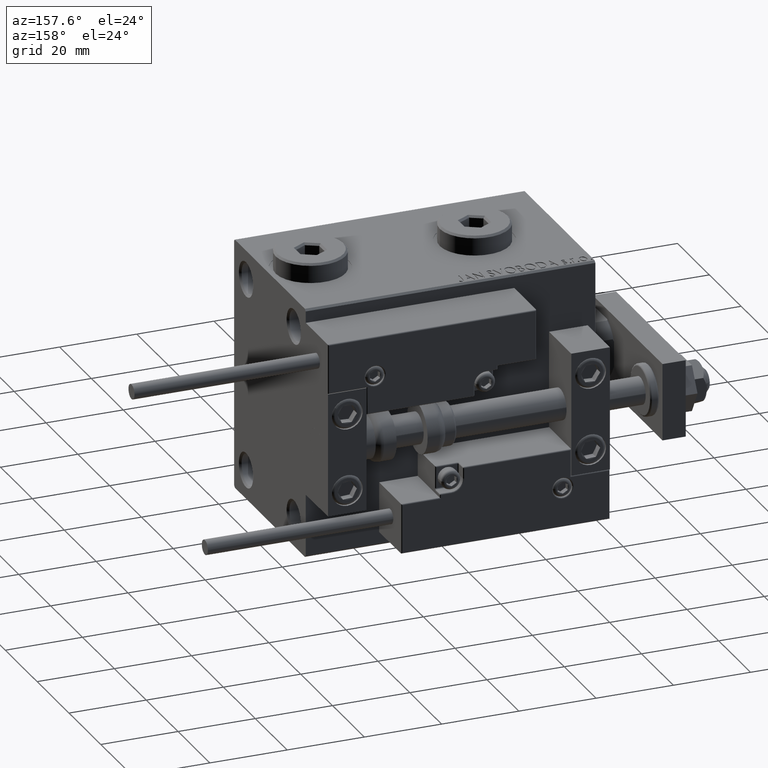
[diagram: clean part render]
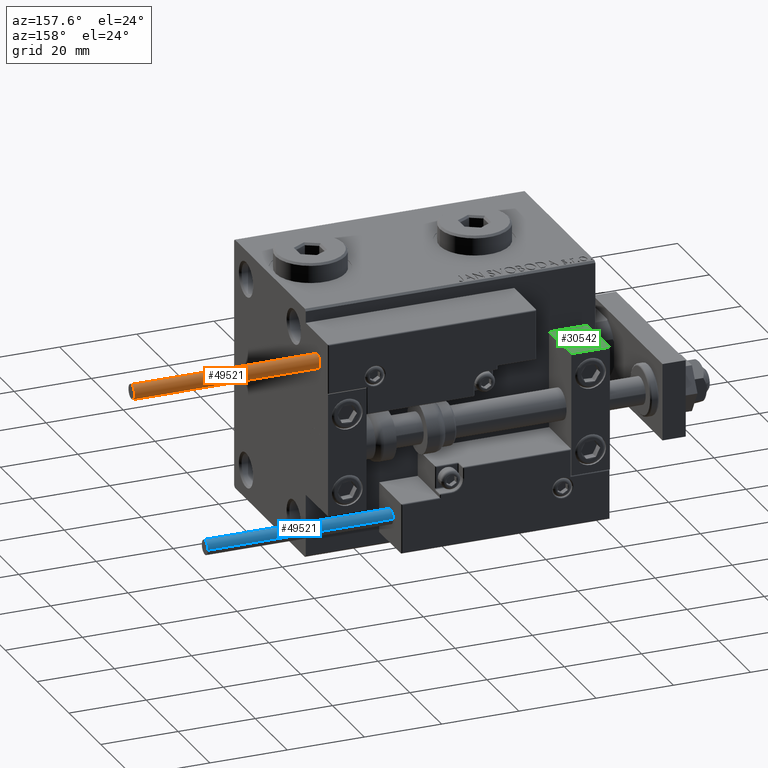
[diagram: same view with three faces highlighted in distinct colors, each labeled with its STEP entity id]
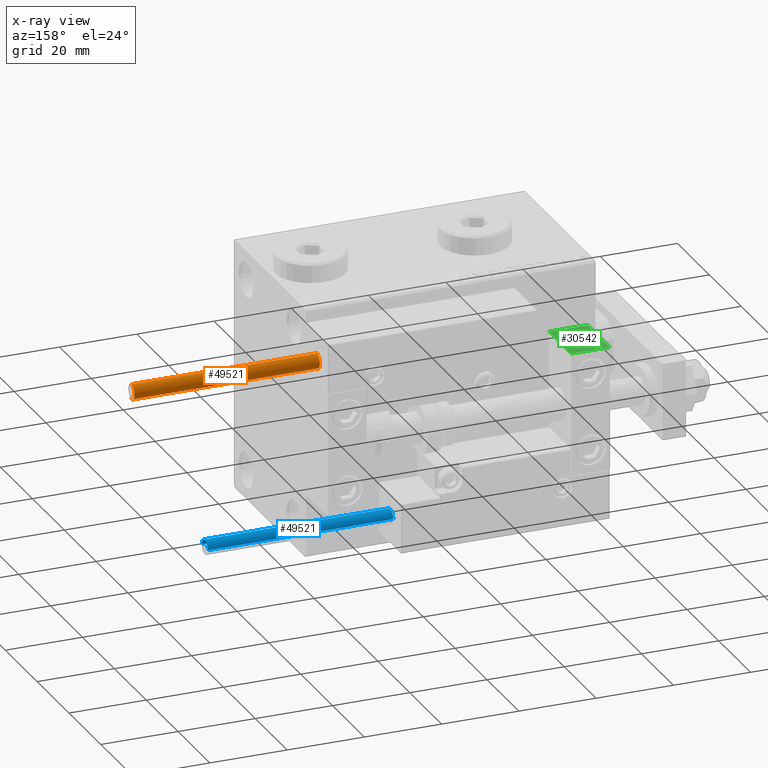
[diagram: x-ray of the same camera — body ghosted, the three highlighted faces saturated]
A machine part, auxiliary view with three faces highlighted in distinct colors.
The next image is the same camera in x-ray (body ghosted, the three faces saturated) — at least one of them is partly hidden behind the body in this view.
Their STEP definitions:

[orange] entity #49521 — the highlighted cylindrical surface (edge-blend (fillet) strip) has radius 1.9 mm, axis along (-1, -0, -0).
#291 = AXIS2_PLACEMENT_3D ( 'NONE', #37021, #588, #9070 ) ;
#588 = DIRECTION ( 'NONE',  ( 0.000000000000000000, 0.000000000000000000, 1.000000000000000000 ) ) ;
#649 = CYLINDRICAL_SURFACE ( 'NONE', #37006, 1.899999999999999467 ) ;
#2665 = DIRECTION ( 'NONE',  ( -0.000000000000000000, -0.000000000000000000, -1.000000000000000000 ) ) ;
#7639 = DIRECTION ( 'NONE',  ( -0.000000000000000000, -0.000000000000000000, -1.000000000000000000 ) ) ;
#9070 = DIRECTION ( 'NONE',  ( 1.000000000000000000, 0.000000000000000000, 0.000000000000000000 ) ) ;
#12320 = CARTESIAN_POINT ( 'NONE',  ( 0.000000000000000000, 0.000000000000000000, 48.00000000000000000 ) ) ;
#14449 = ORIENTED_EDGE ( 'NONE', *, *, #43692, .F. ) ;
#14867 = LINE ( 'NONE', #46281, #37537 ) ;
#14915 = ORIENTED_EDGE ( 'NONE', *, *, #35560, .T. ) ;
#15004 = EDGE_CURVE ( 'NONE', #32699, #50106, #15080, .T. ) ;
#15080 = LINE ( 'NONE', #51254, #36035 ) ;
#17431 = CARTESIAN_POINT ( 'NONE',  ( 0.000000000000000000, 0.000000000000000000, 0.000000000000000000 ) ) ;
#18064 = VERTEX_POINT ( 'NONE', #19954 ) ;
#19277 = FACE_OUTER_BOUND ( 'NONE', #24340, .T. ) ;
#19954 = CARTESIAN_POINT ( 'NONE',  ( 1.899999999999999467, 2.326828918379970872E-16, 0.000000000000000000 ) ) ;
#21231 = VERTEX_POINT ( 'NONE', #48902 ) ;
#24340 = EDGE_LOOP ( 'NONE', ( #14449, #14915, #37441, #48952 ) ) ;
#25526 = AXIS2_PLACEMENT_3D ( 'NONE', #17431, #29674, #37139 ) ;
#29674 = DIRECTION ( 'NONE',  ( 0.000000000000000000, 0.000000000000000000, 1.000000000000000000 ) ) ;
#29979 = CARTESIAN_POINT ( 'NONE',  ( -1.899999999999999467, 0.000000000000000000, 0.000000000000000000 ) ) ;
#32035 = DIRECTION ( 'NONE',  ( -1.000000000000000000, 0.000000000000000000, 0.000000000000000000 ) ) ;
#32564 = CIRCLE ( 'NONE', #291, 1.899999999999999467 ) ;
#32699 = VERTEX_POINT ( 'NONE', #40127 ) ;
#33801 = EDGE_CURVE ( 'NONE', #18064, #50106, #49327, .T. ) ;
#35560 = EDGE_CURVE ( 'NONE', #21231, #18064, #14867, .T. ) ;
#36035 = VECTOR ( 'NONE', #7639, 1000.000000000000000 ) ;
#37006 = AXIS2_PLACEMENT_3D ( 'NONE', #12320, #44520, #32035 ) ;
#37021 = CARTESIAN_POINT ( 'NONE',  ( 0.000000000000000000, 0.000000000000000000, 48.00000000000000000 ) ) ;
#37139 = DIRECTION ( 'NONE',  ( 1.000000000000000000, 0.000000000000000000, 0.000000000000000000 ) ) ;
#37441 = ORIENTED_EDGE ( 'NONE', *, *, #33801, .T. ) ;
#37537 = VECTOR ( 'NONE', #2665, 1000.000000000000000 ) ;
#40127 = CARTESIAN_POINT ( 'NONE',  ( -1.899999999999999467, 0.000000000000000000, 48.00000000000000000 ) ) ;
#43692 = EDGE_CURVE ( 'NONE', #21231, #32699, #32564, .T. ) ;
#44520 = DIRECTION ( 'NONE',  ( -0.000000000000000000, -0.000000000000000000, -1.000000000000000000 ) ) ;
#46281 = CARTESIAN_POINT ( 'NONE',  ( 1.899999999999999467, 2.326828918379970872E-16, 48.00000000000000000 ) ) ;
#48902 = CARTESIAN_POINT ( 'NONE',  ( 1.899999999999999467, 2.326828918379970872E-16, 48.00000000000000000 ) ) ;
#48952 = ORIENTED_EDGE ( 'NONE', *, *, #15004, .F. ) ;
#49327 = CIRCLE ( 'NONE', #25526, 1.899999999999999467 ) ;
#49521 = ADVANCED_FACE ( 'NONE', ( #19277 ), #649, .T. ) ;
#50106 = VERTEX_POINT ( 'NONE', #29979 ) ;
#51254 = CARTESIAN_POINT ( 'NONE',  ( -1.899999999999999467, 0.000000000000000000, 48.00000000000000000 ) ) ;

[blue] entity #49521 — the highlighted cylindrical surface (edge-blend (fillet) strip) has radius 1.9 mm, axis along (-1, 0, 0).
#291 = AXIS2_PLACEMENT_3D ( 'NONE', #37021, #588, #9070 ) ;
#588 = DIRECTION ( 'NONE',  ( 0.000000000000000000, 0.000000000000000000, 1.000000000000000000 ) ) ;
#649 = CYLINDRICAL_SURFACE ( 'NONE', #37006, 1.899999999999999467 ) ;
#2665 = DIRECTION ( 'NONE',  ( -0.000000000000000000, -0.000000000000000000, -1.000000000000000000 ) ) ;
#7639 = DIRECTION ( 'NONE',  ( -0.000000000000000000, -0.000000000000000000, -1.000000000000000000 ) ) ;
#9070 = DIRECTION ( 'NONE',  ( 1.000000000000000000, 0.000000000000000000, 0.000000000000000000 ) ) ;
#12320 = CARTESIAN_POINT ( 'NONE',  ( 0.000000000000000000, 0.000000000000000000, 48.00000000000000000 ) ) ;
#14449 = ORIENTED_EDGE ( 'NONE', *, *, #43692, .F. ) ;
#14867 = LINE ( 'NONE', #46281, #37537 ) ;
#14915 = ORIENTED_EDGE ( 'NONE', *, *, #35560, .T. ) ;
#15004 = EDGE_CURVE ( 'NONE', #32699, #50106, #15080, .T. ) ;
#15080 = LINE ( 'NONE', #51254, #36035 ) ;
#17431 = CARTESIAN_POINT ( 'NONE',  ( 0.000000000000000000, 0.000000000000000000, 0.000000000000000000 ) ) ;
#18064 = VERTEX_POINT ( 'NONE', #19954 ) ;
#19277 = FACE_OUTER_BOUND ( 'NONE', #24340, .T. ) ;
#19954 = CARTESIAN_POINT ( 'NONE',  ( 1.899999999999999467, 2.326828918379970872E-16, 0.000000000000000000 ) ) ;
#21231 = VERTEX_POINT ( 'NONE', #48902 ) ;
#24340 = EDGE_LOOP ( 'NONE', ( #14449, #14915, #37441, #48952 ) ) ;
#25526 = AXIS2_PLACEMENT_3D ( 'NONE', #17431, #29674, #37139 ) ;
#29674 = DIRECTION ( 'NONE',  ( 0.000000000000000000, 0.000000000000000000, 1.000000000000000000 ) ) ;
#29979 = CARTESIAN_POINT ( 'NONE',  ( -1.899999999999999467, 0.000000000000000000, 0.000000000000000000 ) ) ;
#32035 = DIRECTION ( 'NONE',  ( -1.000000000000000000, 0.000000000000000000, 0.000000000000000000 ) ) ;
#32564 = CIRCLE ( 'NONE', #291, 1.899999999999999467 ) ;
#32699 = VERTEX_POINT ( 'NONE', #40127 ) ;
#33801 = EDGE_CURVE ( 'NONE', #18064, #50106, #49327, .T. ) ;
#35560 = EDGE_CURVE ( 'NONE', #21231, #18064, #14867, .T. ) ;
#36035 = VECTOR ( 'NONE', #7639, 1000.000000000000000 ) ;
#37006 = AXIS2_PLACEMENT_3D ( 'NONE', #12320, #44520, #32035 ) ;
#37021 = CARTESIAN_POINT ( 'NONE',  ( 0.000000000000000000, 0.000000000000000000, 48.00000000000000000 ) ) ;
#37139 = DIRECTION ( 'NONE',  ( 1.000000000000000000, 0.000000000000000000, 0.000000000000000000 ) ) ;
#37441 = ORIENTED_EDGE ( 'NONE', *, *, #33801, .T. ) ;
#37537 = VECTOR ( 'NONE', #2665, 1000.000000000000000 ) ;
#40127 = CARTESIAN_POINT ( 'NONE',  ( -1.899999999999999467, 0.000000000000000000, 48.00000000000000000 ) ) ;
#43692 = EDGE_CURVE ( 'NONE', #21231, #32699, #32564, .T. ) ;
#44520 = DIRECTION ( 'NONE',  ( -0.000000000000000000, -0.000000000000000000, -1.000000000000000000 ) ) ;
#46281 = CARTESIAN_POINT ( 'NONE',  ( 1.899999999999999467, 2.326828918379970872E-16, 48.00000000000000000 ) ) ;
#48902 = CARTESIAN_POINT ( 'NONE',  ( 1.899999999999999467, 2.326828918379970872E-16, 48.00000000000000000 ) ) ;
#48952 = ORIENTED_EDGE ( 'NONE', *, *, #15004, .F. ) ;
#49327 = CIRCLE ( 'NONE', #25526, 1.899999999999999467 ) ;
#49521 = ADVANCED_FACE ( 'NONE', ( #19277 ), #649, .T. ) ;
#50106 = VERTEX_POINT ( 'NONE', #29979 ) ;
#51254 = CARTESIAN_POINT ( 'NONE',  ( -1.899999999999999467, 0.000000000000000000, 48.00000000000000000 ) ) ;

[green] entity #30542 — the highlighted planar face has unit normal (-0, -0, 1).
#489 = VECTOR ( 'NONE', #31515, 1000.000000000000000 ) ;
#1492 = DIRECTION ( 'NONE',  ( -1.000000000000000000, -0.000000000000000000, -0.000000000000000000 ) ) ;
#3631 = CARTESIAN_POINT ( 'NONE',  ( 0.000000000000000000, -7.000000000000000000, -16.00000000000000711 ) ) ;
#5211 = CARTESIAN_POINT ( 'NONE',  ( 10.00000000000000000, 7.000000000000000000, -16.00000000000000711 ) ) ;
#9007 = EDGE_CURVE ( 'NONE', #50737, #32722, #34457, .T. ) ;
#10025 = CARTESIAN_POINT ( 'NONE',  ( 10.00000000000000000, 7.000000000000000000, -16.00000000000000711 ) ) ;
#10279 = CARTESIAN_POINT ( 'NONE',  ( 10.00000000000000000, 7.000000000000000000, -16.00000000000000711 ) ) ;
#13226 = DIRECTION ( 'NONE',  ( 0.000000000000000000, -1.000000000000000000, 0.000000000000000000 ) ) ;
#15854 = EDGE_LOOP ( 'NONE', ( #37860, #17782, #29380, #40258 ) ) ;
#17782 = ORIENTED_EDGE ( 'NONE', *, *, #9007, .F. ) ;
#18728 = VECTOR ( 'NONE', #42870, 1000.000000000000000 ) ;
#20568 = CARTESIAN_POINT ( 'NONE',  ( 10.00000000000000000, 7.000000000000000000, -16.00000000000000711 ) ) ;
#22399 = LINE ( 'NONE', #42102, #18728 ) ;
#22784 = DIRECTION ( 'NONE',  ( -1.000000000000000000, 0.000000000000000000, -0.000000000000000000 ) ) ;
#25472 = LINE ( 'NONE', #10025, #43753 ) ;
#29380 = ORIENTED_EDGE ( 'NONE', *, *, #48138, .T. ) ;
#30542 = ADVANCED_FACE ( 'NONE', ( #50702 ), #46707, .T. ) ;
#30583 = VERTEX_POINT ( 'NONE', #3631 ) ;
#31515 = DIRECTION ( 'NONE',  ( -1.000000000000000000, -0.000000000000000000, -0.000000000000000000 ) ) ;
#32411 = CARTESIAN_POINT ( 'NONE',  ( 0.000000000000000000, 7.000000000000000000, -16.00000000000000711 ) ) ;
#32722 = VERTEX_POINT ( 'NONE', #32411 ) ;
#34457 = LINE ( 'NONE', #5211, #37794 ) ;
#37794 = VECTOR ( 'NONE', #1492, 1000.000000000000000 ) ;
#37860 = ORIENTED_EDGE ( 'NONE', *, *, #50858, .F. ) ;
#38754 = DIRECTION ( 'NONE',  ( 0.000000000000000000, 0.000000000000000000, -1.000000000000000000 ) ) ;
#39758 = LINE ( 'NONE', #43741, #489 ) ;
#40258 = ORIENTED_EDGE ( 'NONE', *, *, #49393, .T. ) ;
#42102 = CARTESIAN_POINT ( 'NONE',  ( 0.000000000000000000, 7.000000000000000000, -16.00000000000000711 ) ) ;
#42870 = DIRECTION ( 'NONE',  ( 0.000000000000000000, -1.000000000000000000, 0.000000000000000000 ) ) ;
#43741 = CARTESIAN_POINT ( 'NONE',  ( 10.00000000000000000, -7.000000000000000000, -16.00000000000000711 ) ) ;
#43753 = VECTOR ( 'NONE', #13226, 1000.000000000000000 ) ;
#44372 = VERTEX_POINT ( 'NONE', #47286 ) ;
#46707 = PLANE ( 'NONE',  #50879 ) ;
#47286 = CARTESIAN_POINT ( 'NONE',  ( 10.00000000000000000, -7.000000000000000000, -16.00000000000000711 ) ) ;
#48138 = EDGE_CURVE ( 'NONE', #50737, #44372, #25472, .T. ) ;
#49393 = EDGE_CURVE ( 'NONE', #44372, #30583, #39758, .T. ) ;
#50702 = FACE_OUTER_BOUND ( 'NONE', #15854, .T. ) ;
#50737 = VERTEX_POINT ( 'NONE', #20568 ) ;
#50858 = EDGE_CURVE ( 'NONE', #32722, #30583, #22399, .T. ) ;
#50879 = AXIS2_PLACEMENT_3D ( 'NONE', #10279, #38754, #22784 ) ;